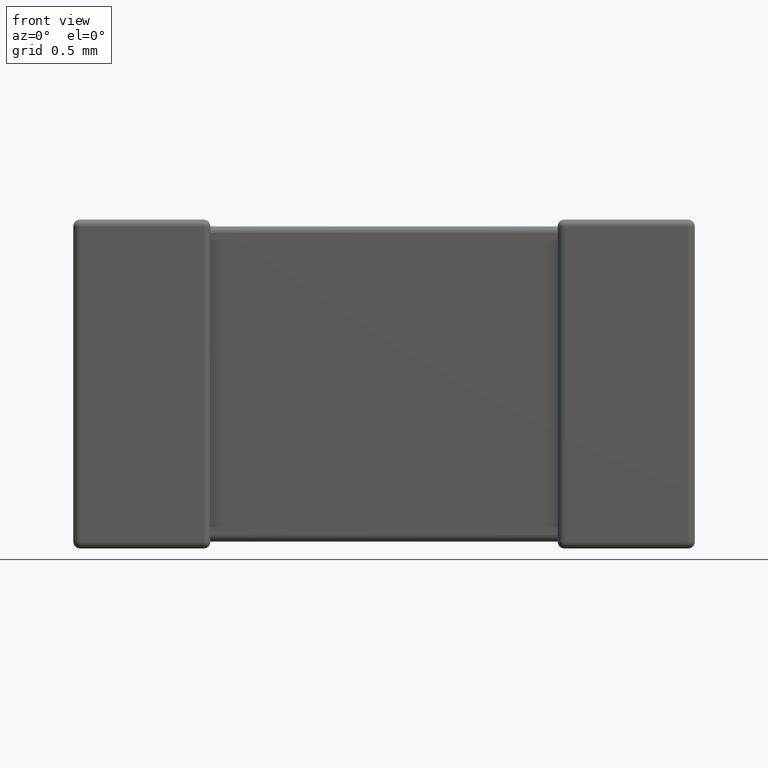
[diagram: clean part render]
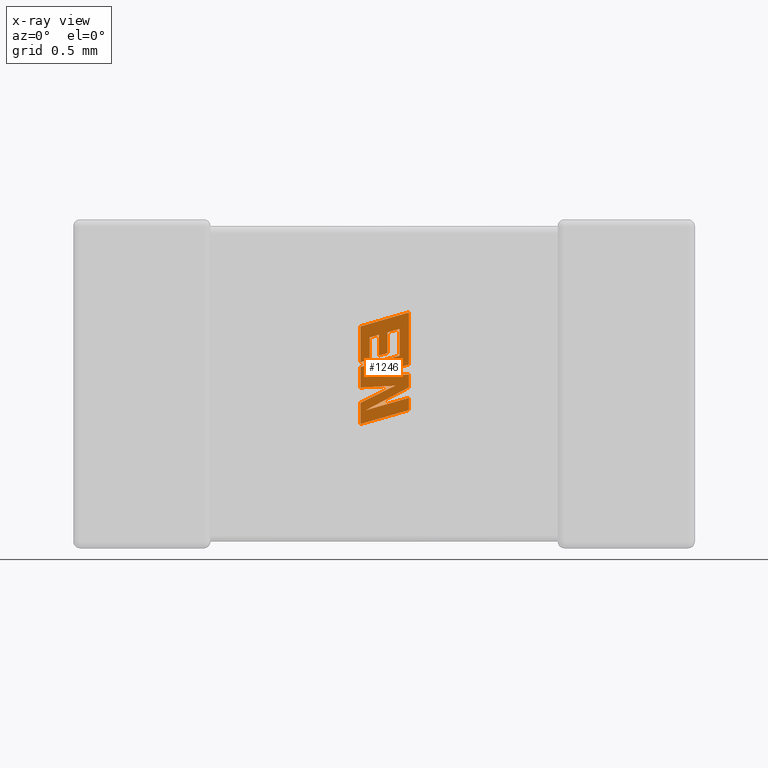
[diagram: x-ray — body ghosted, one internal face saturated and labeled with its STEP entity id]
A machine part, front view, then the same camera in x-ray: the body is ghosted and one INTERNAL B-rep face — a face not visible from any outside direction — is saturated and labeled: STEP entity #1246.
In plain terms, the highlighted planar face has unit normal (0, -1, 0).
Its self-contained STEP definition (entity closure, byte-faithful):
#12 = CARTESIAN_POINT ( 'NONE',  ( 1.571380152701791211, 1.062560000000000171, -0.9198648371720272721 ) ) ;
#17 = DIRECTION ( 'NONE',  ( -0.9601763114327565019, 0.000000000000000000, -0.2793947940878392933 ) ) ;
#37 = CARTESIAN_POINT ( 'NONE',  ( 1.670968431657682274, 1.062560000000000171, -0.6315870441368872656 ) ) ;
#50 = PLANE ( 'NONE',  #1529 ) ;
#73 = EDGE_CURVE ( 'NONE', #1413, #1569, #1437, .T. ) ;
#97 = CARTESIAN_POINT ( 'NONE',  ( 1.670968431657682274, 1.062560000000000171, -0.7451649767832891902 ) ) ;
#102 = VERTEX_POINT ( 'NONE', #4025 ) ;
#140 = ORIENTED_EDGE ( 'NONE', *, *, #1242, .F. ) ;
#183 = ORIENTED_EDGE ( 'NONE', *, *, #2026, .F. ) ;
#188 = LINE ( 'NONE', #971, #3011 ) ;
#189 = VERTEX_POINT ( 'NONE', #4137 ) ;
#190 = LINE ( 'NONE', #3676, #2375 ) ;
#192 = ORIENTED_EDGE ( 'NONE', *, *, #863, .F. ) ;
#203 = CARTESIAN_POINT ( 'NONE',  ( 1.836000000000004517, 1.062560000000000171, -0.5091391542831160688 ) ) ;
#232 = LINE ( 'NONE', #4512, #1978 ) ;
#269 = DIRECTION ( 'NONE',  ( 0.000000000000000000, 0.000000000000000000, -1.000000000000000000 ) ) ;
#316 = VECTOR ( 'NONE', #321, 1000.000000000000227 ) ;
#321 = DIRECTION ( 'NONE',  ( -0.9610674221107078363, 0.000000000000000000, -0.2763139702539094134 ) ) ;
#340 = EDGE_CURVE ( 'NONE', #1184, #470, #753, .T. ) ;
#343 = DIRECTION ( 'NONE',  ( 0.000000000000000000, 0.000000000000000000, -1.000000000000000000 ) ) ;
#389 = DIRECTION ( 'NONE',  ( 0.9611542233438712390, 0.000000000000000000, 0.2760118818968482213 ) ) ;
#397 = DIRECTION ( 'NONE',  ( 0.000000000000000000, 0.000000000000000000, 1.000000000000000000 ) ) ;
#470 = VERTEX_POINT ( 'NONE', #896 ) ;
#532 = CARTESIAN_POINT ( 'NONE',  ( 1.760427971559525018, 1.062560000000000171, -0.9096883145256312586 ) ) ;
#541 = LINE ( 'NONE', #1981, #4042 ) ;
#573 = EDGE_CURVE ( 'NONE', #709, #2418, #2028, .T. ) ;
#574 = VERTEX_POINT ( 'NONE', #1644 ) ;
#583 = VERTEX_POINT ( 'NONE', #3888 ) ;
#604 = CARTESIAN_POINT ( 'NONE',  ( 1.785655913532542716, 1.062560000000000171, -0.7455817617719676660 ) ) ;
#618 = CARTESIAN_POINT ( 'NONE',  ( 1.719887564039056294, 1.062560000000000171, -0.7311922197814223479 ) ) ;
#640 = DIRECTION ( 'NONE',  ( 0.000000000000000000, 0.000000000000000000, -1.000000000000000000 ) ) ;
#662 = LINE ( 'NONE', #1125, #2349 ) ;
#663 = ORIENTED_EDGE ( 'NONE', *, *, #4027, .F. ) ;
#680 = CARTESIAN_POINT ( 'NONE',  ( 1.621749181899789116, 1.062560000000000171, -0.6459089993731549351 ) ) ;
#690 = CARTESIAN_POINT ( 'NONE',  ( 1.836000000000004517, 1.062560000000000171, -1.043430154215027272 ) ) ;
#709 = VERTEX_POINT ( 'NONE', #1573 ) ;
#735 = VERTEX_POINT ( 'NONE', #1192 ) ;
#753 = LINE ( 'NONE', #3942, #3385 ) ;
#754 = DIRECTION ( 'NONE',  ( 0.000000000000000000, -1.000000000000000000, 0.000000000000000000 ) ) ;
#814 = LINE ( 'NONE', #12, #2710 ) ;
#862 = CARTESIAN_POINT ( 'NONE',  ( 1.670968431657682274, 1.062560000000000171, -0.7451649767832891902 ) ) ;
#863 = EDGE_CURVE ( 'NONE', #3999, #2187, #188, .T. ) ;
#867 = CARTESIAN_POINT ( 'NONE',  ( 1.785655913532542716, 1.062560000000000171, -0.5988911467783583076 ) ) ;
#881 = CARTESIAN_POINT ( 'NONE',  ( 1.571380152701791211, 1.062560000000000171, -0.7807783690678609112 ) ) ;
#882 = VECTOR ( 'NONE', #975, 1000.000000000000000 ) ;
#891 = LINE ( 'NONE', #867, #2368 ) ;
#896 = CARTESIAN_POINT ( 'NONE',  ( 1.836000000000004517, 1.062560000000000171, -0.7942160640461678467 ) ) ;
#942 = ORIENTED_EDGE ( 'NONE', *, *, #4149, .F. ) ;
#971 = CARTESIAN_POINT ( 'NONE',  ( 1.719887564039056294, 1.062560000000000171, -0.7311922197814223479 ) ) ;
#975 = DIRECTION ( 'NONE',  ( 0.000000000000000000, 0.000000000000000000, 1.000000000000000000 ) ) ;
#1000 = DIRECTION ( 'NONE',  ( -0.9619530280415479195, 0.000000000000000000, -0.2732148821746301914 ) ) ;
#1039 = DIRECTION ( 'NONE',  ( 0.8958676361826827250, 0.000000000000000000, 0.4443210308329466618 ) ) ;
#1045 = CARTESIAN_POINT ( 'NONE',  ( 1.836000000000004517, 1.062560000000000171, -0.9761861605695812960 ) ) ;
#1068 = ORIENTED_EDGE ( 'NONE', *, *, #3247, .F. ) ;
#1125 = CARTESIAN_POINT ( 'NONE',  ( 1.836000000000004517, 1.062560000000000171, -0.7942160640461678467 ) ) ;
#1132 = CARTESIAN_POINT ( 'NONE',  ( 1.571380152701791211, 1.062560000000000171, -0.5852860939098785131 ) ) ;
#1152 = VECTOR ( 'NONE', #389, 1000.000000000000114 ) ;
#1179 = VERTEX_POINT ( 'NONE', #532 ) ;
#1184 = VERTEX_POINT ( 'NONE', #203 ) ;
#1192 = CARTESIAN_POINT ( 'NONE',  ( 1.836000000000004517, 1.062560000000000171, -0.9191992616065969290 ) ) ;
#1242 = EDGE_CURVE ( 'NONE', #470, #4588, #662, .T. ) ;
#1246 = ADVANCED_FACE ( 'NONE', ( #2113 ), #50, .T. ) ;
#1303 = ORIENTED_EDGE ( 'NONE', *, *, #73, .F. ) ;
#1322 = LINE ( 'NONE', #4221, #4540 ) ;
#1369 = VECTOR ( 'NONE', #1039, 1000.000000000000114 ) ;
#1387 = VERTEX_POINT ( 'NONE', #1743 ) ;
#1413 = VERTEX_POINT ( 'NONE', #3527 ) ;
#1437 = LINE ( 'NONE', #37, #1522 ) ;
#1476 = VECTOR ( 'NONE', #3229, 999.9999999999998863 ) ;
#1522 = VECTOR ( 'NONE', #17, 1000.000000000000114 ) ;
#1529 = AXIS2_PLACEMENT_3D ( 'NONE', #4242, #754, #269 ) ;
#1544 = LINE ( 'NONE', #881, #2203 ) ;
#1569 = VERTEX_POINT ( 'NONE', #680 ) ;
#1573 = CARTESIAN_POINT ( 'NONE',  ( 1.571380152701791211, 1.062560000000000171, -0.8071726061217919801 ) ) ;
#1589 = ORIENTED_EDGE ( 'NONE', *, *, #3943, .F. ) ;
#1611 = EDGE_CURVE ( 'NONE', #2187, #1413, #2586, .T. ) ;
#1613 = EDGE_CURVE ( 'NONE', #735, #3664, #541, .T. ) ;
#1634 = EDGE_CURVE ( 'NONE', #3801, #3999, #190, .T. ) ;
#1644 = CARTESIAN_POINT ( 'NONE',  ( 1.571380152701791211, 1.062560000000000171, -0.5852860939098785131 ) ) ;
#1662 = ORIENTED_EDGE ( 'NONE', *, *, #3790, .F. ) ;
#1687 = DIRECTION ( 'NONE',  ( 0.000000000000000000, 0.000000000000000000, -1.000000000000000000 ) ) ;
#1727 = LINE ( 'NONE', #1045, #3042 ) ;
#1743 = CARTESIAN_POINT ( 'NONE',  ( 1.571380152701791211, 1.062560000000000171, -1.003449846206255325 ) ) ;
#1764 = ORIENTED_EDGE ( 'NONE', *, *, #3941, .F. ) ;
#1857 = CARTESIAN_POINT ( 'NONE',  ( 1.719887564039056294, 1.062560000000000171, -0.6176303792195445563 ) ) ;
#1874 = EDGE_CURVE ( 'NONE', #189, #3801, #891, .T. ) ;
#1878 = VERTEX_POINT ( 'NONE', #4415 ) ;
#1903 = ORIENTED_EDGE ( 'NONE', *, *, #4608, .F. ) ;
#1950 = VERTEX_POINT ( 'NONE', #4244 ) ;
#1956 = DIRECTION ( 'NONE',  ( 0.000000000000000000, 0.000000000000000000, 1.000000000000000000 ) ) ;
#1978 = VECTOR ( 'NONE', #1687, 1000.000000000000000 ) ;
#1979 = DIRECTION ( 'NONE',  ( -0.9615454294334448981, 0.000000000000000000, -0.2746459304917005517 ) ) ;
#1981 = CARTESIAN_POINT ( 'NONE',  ( 1.836000000000004517, 1.062560000000000171, -0.9191992616065969290 ) ) ;
#2026 = EDGE_CURVE ( 'NONE', #1950, #102, #1727, .T. ) ;
#2028 = LINE ( 'NONE', #2056, #3916 ) ;
#2056 = CARTESIAN_POINT ( 'NONE',  ( 1.571380152701791211, 1.062560000000000171, -0.8071726061217919801 ) ) ;
#2087 = LINE ( 'NONE', #3181, #1476 ) ;
#2095 = CARTESIAN_POINT ( 'NONE',  ( 1.599281413472585678, 1.062560000000000171, -1.044163953269784839 ) ) ;
#2109 = VERTEX_POINT ( 'NONE', #3331 ) ;
#2113 = FACE_OUTER_BOUND ( 'NONE', #3330, .T. ) ;
#2142 = ORIENTED_EDGE ( 'NONE', *, *, #1611, .F. ) ;
#2187 = VERTEX_POINT ( 'NONE', #862 ) ;
#2188 = EDGE_CURVE ( 'NONE', #574, #1184, #3018, .T. ) ;
#2203 = VECTOR ( 'NONE', #3350, 1000.000000000000000 ) ;
#2213 = CARTESIAN_POINT ( 'NONE',  ( 1.599281413472585678, 1.062560000000000171, -1.044163953269784839 ) ) ;
#2289 = EDGE_CURVE ( 'NONE', #1179, #3434, #2087, .T. ) ;
#2349 = VECTOR ( 'NONE', #4040, 1000.000000000000227 ) ;
#2368 = VECTOR ( 'NONE', #3289, 1000.000000000000000 ) ;
#2375 = VECTOR ( 'NONE', #2657, 1000.000000000000000 ) ;
#2418 = VERTEX_POINT ( 'NONE', #604 ) ;
#2458 = ORIENTED_EDGE ( 'NONE', *, *, #1634, .F. ) ;
#2486 = VECTOR ( 'NONE', #343, 1000.000000000000000 ) ;
#2551 = DIRECTION ( 'NONE',  ( 0.9610029908221285888, 0.000000000000000000, 0.2765379750249931656 ) ) ;
#2573 = LINE ( 'NONE', #2213, #1152 ) ;
#2586 = LINE ( 'NONE', #97, #4117 ) ;
#2657 = DIRECTION ( 'NONE',  ( 0.000000000000000000, 0.000000000000000000, -1.000000000000000000 ) ) ;
#2704 = DIRECTION ( 'NONE',  ( 0.000000000000000000, 0.000000000000000000, 1.000000000000000000 ) ) ;
#2710 = VECTOR ( 'NONE', #397, 1000.000000000000000 ) ;
#2753 = LINE ( 'NONE', #690, #316 ) ;
#2791 = CARTESIAN_POINT ( 'NONE',  ( 1.600415905431753272, 1.062560000000000171, -0.8618591413881407926 ) ) ;
#2805 = EDGE_CURVE ( 'NONE', #4588, #4243, #3356, .T. ) ;
#2957 = DIRECTION ( 'NONE',  ( -0.8843386665637650301, 0.000000000000000000, -0.4668459304955137057 ) ) ;
#2962 = VECTOR ( 'NONE', #2551, 1000.000000000000114 ) ;
#3011 = VECTOR ( 'NONE', #1979, 1000.000000000000227 ) ;
#3018 = LINE ( 'NONE', #1132, #2962 ) ;
#3036 = LINE ( 'NONE', #3684, #882 ) ;
#3042 = VECTOR ( 'NONE', #640, 1000.000000000000000 ) ;
#3124 = VECTOR ( 'NONE', #1000, 999.9999999999998863 ) ;
#3127 = ORIENTED_EDGE ( 'NONE', *, *, #573, .F. ) ;
#3181 = CARTESIAN_POINT ( 'NONE',  ( 1.760427971559525018, 1.062560000000000171, -0.9096883145256312586 ) ) ;
#3183 = CARTESIAN_POINT ( 'NONE',  ( 1.571380152701791211, 1.062560000000000171, -1.003449846206255325 ) ) ;
#3202 = DIRECTION ( 'NONE',  ( 0.000000000000000000, 0.000000000000000000, -1.000000000000000000 ) ) ;
#3229 = DIRECTION ( 'NONE',  ( -0.9985542843760949472, 0.000000000000000000, -0.05375259206908061804 ) ) ;
#3247 = EDGE_CURVE ( 'NONE', #2109, #1387, #3036, .T. ) ;
#3289 = DIRECTION ( 'NONE',  ( -0.9617234872620624708, 0.000000000000000000, -0.2740217765953968376 ) ) ;
#3298 = EDGE_CURVE ( 'NONE', #583, #1878, #3905, .T. ) ;
#3330 = EDGE_LOOP ( 'NONE', ( #1068, #1764, #183, #663, #4320, #1903, #4293, #140, #4511, #3991, #942, #3594, #4429, #1303, #2142, #192, #2458, #3609, #3361, #3127, #1662, #4289, #1589 ) ) ;
#3331 = CARTESIAN_POINT ( 'NONE',  ( 1.571380152701791211, 1.062560000000000171, -1.119510311478468134 ) ) ;
#3350 = DIRECTION ( 'NONE',  ( 0.000000000000000000, 0.000000000000000000, 1.000000000000000000 ) ) ;
#3356 = LINE ( 'NONE', #3689, #3963 ) ;
#3361 = ORIENTED_EDGE ( 'NONE', *, *, #4545, .F. ) ;
#3385 = VECTOR ( 'NONE', #3202, 1000.000000000000000 ) ;
#3434 = VERTEX_POINT ( 'NONE', #4671 ) ;
#3454 = DIRECTION ( 'NONE',  ( 0.9610853065513847993, 0.000000000000000000, 0.2762517575166369421 ) ) ;
#3467 = LINE ( 'NONE', #3183, #1369 ) ;
#3527 = CARTESIAN_POINT ( 'NONE',  ( 1.670968431657682274, 1.062560000000000171, -0.6315870441368872656 ) ) ;
#3594 = ORIENTED_EDGE ( 'NONE', *, *, #3298, .F. ) ;
#3609 = ORIENTED_EDGE ( 'NONE', *, *, #1874, .F. ) ;
#3664 = VERTEX_POINT ( 'NONE', #2095 ) ;
#3676 = CARTESIAN_POINT ( 'NONE',  ( 1.719887564039056294, 1.062560000000000171, -0.6176303792195445563 ) ) ;
#3684 = CARTESIAN_POINT ( 'NONE',  ( 1.571380152701791211, 1.062560000000000171, -1.119510311478468134 ) ) ;
#3689 = CARTESIAN_POINT ( 'NONE',  ( 1.600415905431753272, 1.062560000000000171, -0.8618591413881407926 ) ) ;
#3714 = DIRECTION ( 'NONE',  ( 0.9984327301130250243, 0.000000000000000000, 0.05596501978067341954 ) ) ;
#3790 = EDGE_CURVE ( 'NONE', #3434, #709, #814, .T. ) ;
#3801 = VERTEX_POINT ( 'NONE', #1857 ) ;
#3888 = CARTESIAN_POINT ( 'NONE',  ( 1.621749181899789116, 1.062560000000000171, -0.7664725059161028309 ) ) ;
#3905 = LINE ( 'NONE', #4597, #3124 ) ;
#3916 = VECTOR ( 'NONE', #3454, 1000.000000000000114 ) ;
#3941 = EDGE_CURVE ( 'NONE', #102, #2109, #2753, .T. ) ;
#3942 = CARTESIAN_POINT ( 'NONE',  ( 1.836000000000004517, 1.062560000000000171, -0.7471145326128900699 ) ) ;
#3943 = EDGE_CURVE ( 'NONE', #1387, #1179, #3467, .T. ) ;
#3963 = VECTOR ( 'NONE', #3714, 1000.000000000000114 ) ;
#3991 = ORIENTED_EDGE ( 'NONE', *, *, #2188, .F. ) ;
#3999 = VERTEX_POINT ( 'NONE', #618 ) ;
#4025 = CARTESIAN_POINT ( 'NONE',  ( 1.836000000000004517, 1.062560000000000171, -1.043430154215027272 ) ) ;
#4027 = EDGE_CURVE ( 'NONE', #3664, #1950, #2573, .T. ) ;
#4040 = DIRECTION ( 'NONE',  ( -0.9611638845408969622, 0.000000000000000000, -0.2759782365590690012 ) ) ;
#4042 = VECTOR ( 'NONE', #2957, 1000.000000000000000 ) ;
#4091 = EDGE_CURVE ( 'NONE', #1569, #583, #4359, .T. ) ;
#4117 = VECTOR ( 'NONE', #1956, 1000.000000000000000 ) ;
#4137 = CARTESIAN_POINT ( 'NONE',  ( 1.785655913532542716, 1.062560000000000171, -0.5988911467783583076 ) ) ;
#4149 = EDGE_CURVE ( 'NONE', #1878, #574, #1544, .T. ) ;
#4221 = CARTESIAN_POINT ( 'NONE',  ( 1.785655913532542716, 1.062560000000000171, -0.7455817617719676660 ) ) ;
#4242 = CARTESIAN_POINT ( 'NONE',  ( 0.06016339829042452458, 1.062560000000000171, 0.004072901265455560610 ) ) ;
#4243 = VERTEX_POINT ( 'NONE', #4629 ) ;
#4244 = CARTESIAN_POINT ( 'NONE',  ( 1.836000000000004517, 1.062560000000000171, -0.9761861605695812960 ) ) ;
#4289 = ORIENTED_EDGE ( 'NONE', *, *, #2289, .F. ) ;
#4293 = ORIENTED_EDGE ( 'NONE', *, *, #2805, .F. ) ;
#4320 = ORIENTED_EDGE ( 'NONE', *, *, #1613, .F. ) ;
#4359 = LINE ( 'NONE', #4406, #2486 ) ;
#4406 = CARTESIAN_POINT ( 'NONE',  ( 1.621749181899789116, 1.062560000000000171, -0.6459089993731549351 ) ) ;
#4415 = CARTESIAN_POINT ( 'NONE',  ( 1.571380152701791211, 1.062560000000000171, -0.7807783690678609112 ) ) ;
#4429 = ORIENTED_EDGE ( 'NONE', *, *, #4091, .F. ) ;
#4511 = ORIENTED_EDGE ( 'NONE', *, *, #340, .F. ) ;
#4512 = CARTESIAN_POINT ( 'NONE',  ( 1.836000000000004517, 1.062560000000000171, -0.8486539768188343658 ) ) ;
#4540 = VECTOR ( 'NONE', #2704, 1000.000000000000000 ) ;
#4545 = EDGE_CURVE ( 'NONE', #2418, #189, #1322, .T. ) ;
#4588 = VERTEX_POINT ( 'NONE', #2791 ) ;
#4597 = CARTESIAN_POINT ( 'NONE',  ( 1.621749181899789116, 1.062560000000000171, -0.7664725059161028309 ) ) ;
#4608 = EDGE_CURVE ( 'NONE', #4243, #735, #232, .T. ) ;
#4629 = CARTESIAN_POINT ( 'NONE',  ( 1.836000000000004517, 1.062560000000000171, -0.8486539768188343658 ) ) ;
#4671 = CARTESIAN_POINT ( 'NONE',  ( 1.571380152701791211, 1.062560000000000171, -0.9198648371720272721 ) ) ;